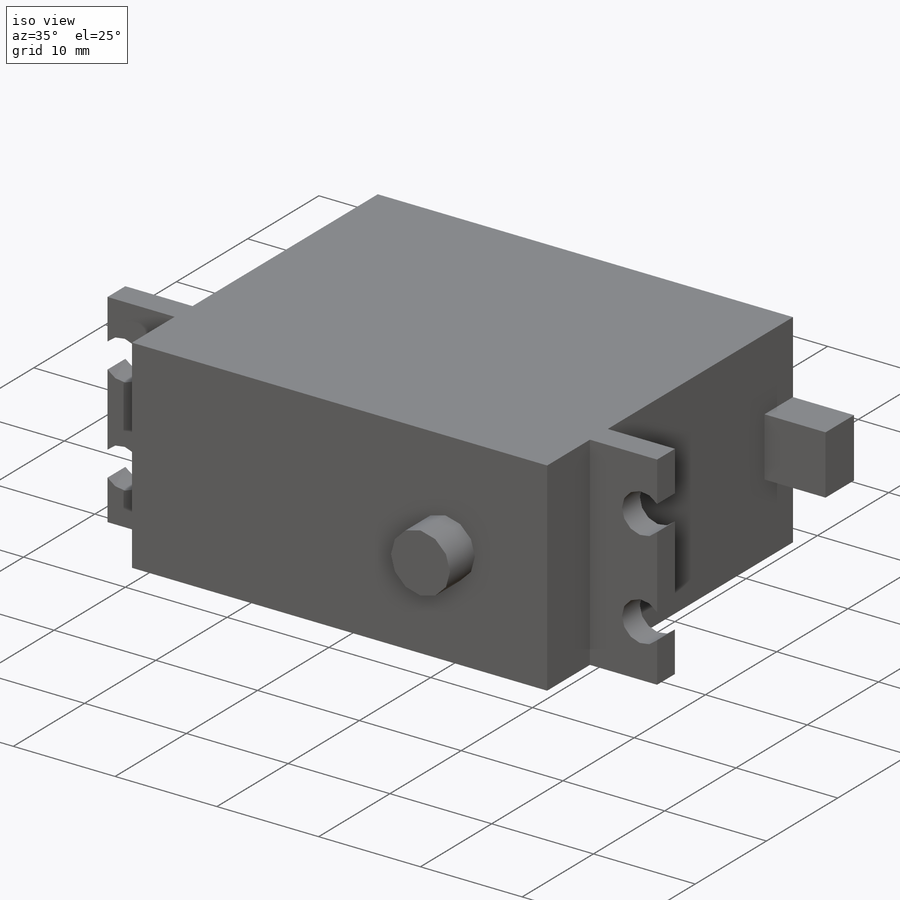
[diagram: iso view]
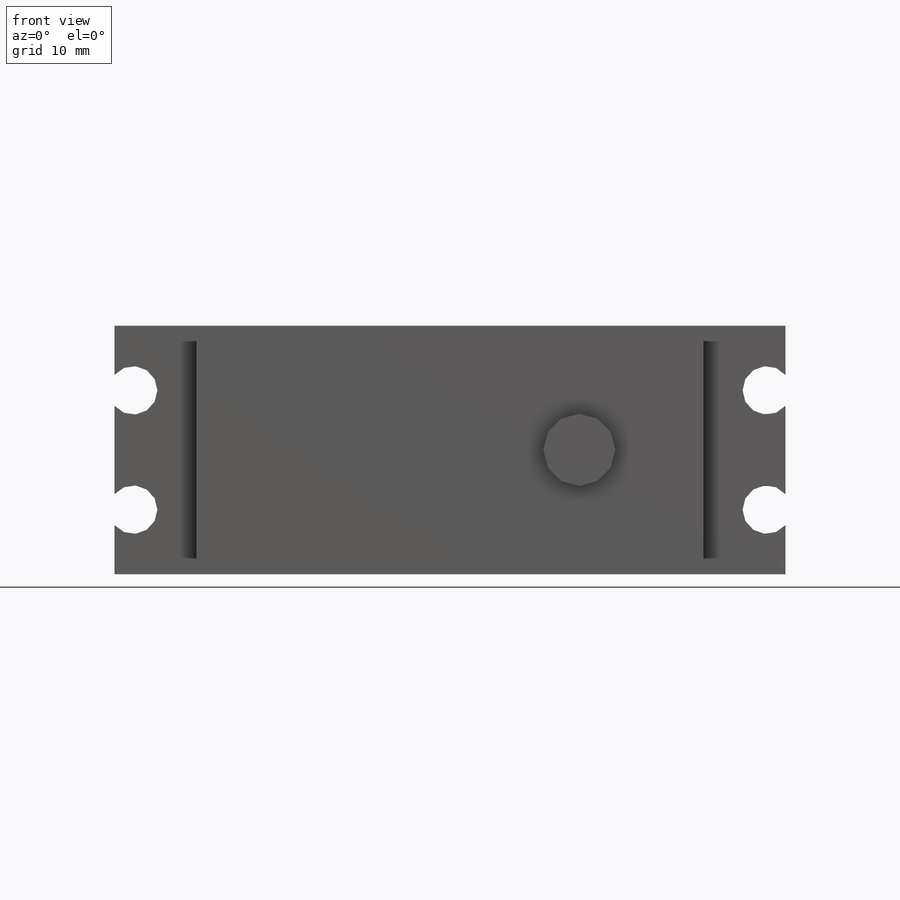
[diagram: front view]
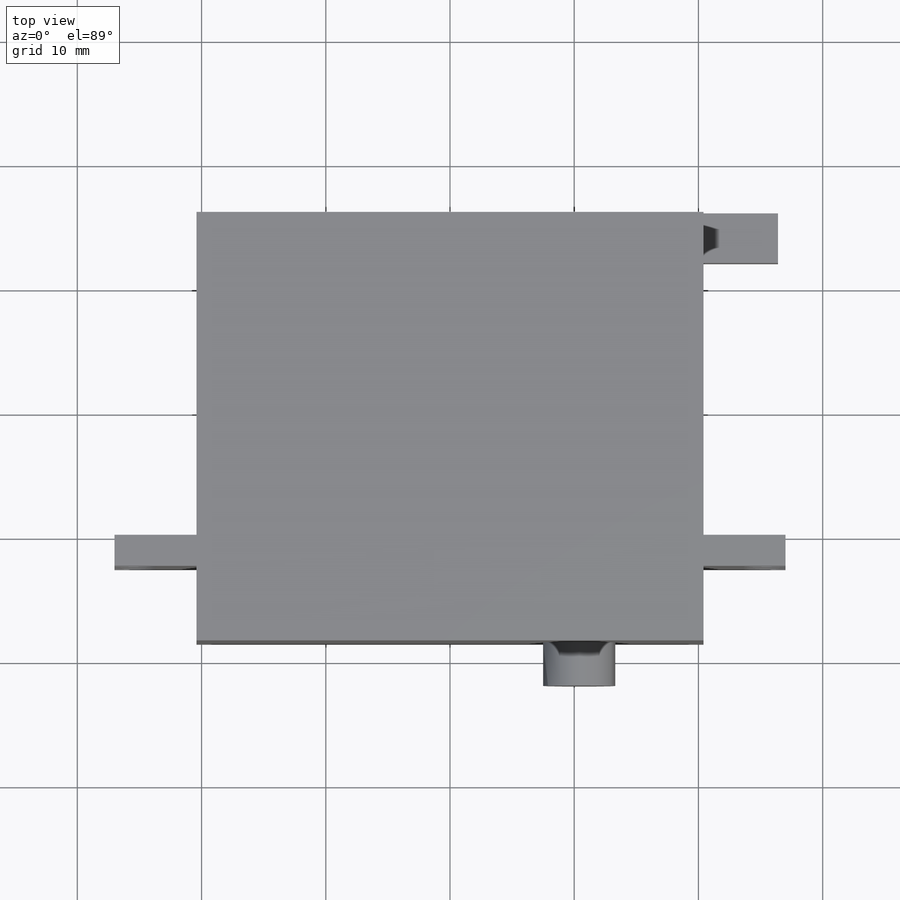
[diagram: top view]
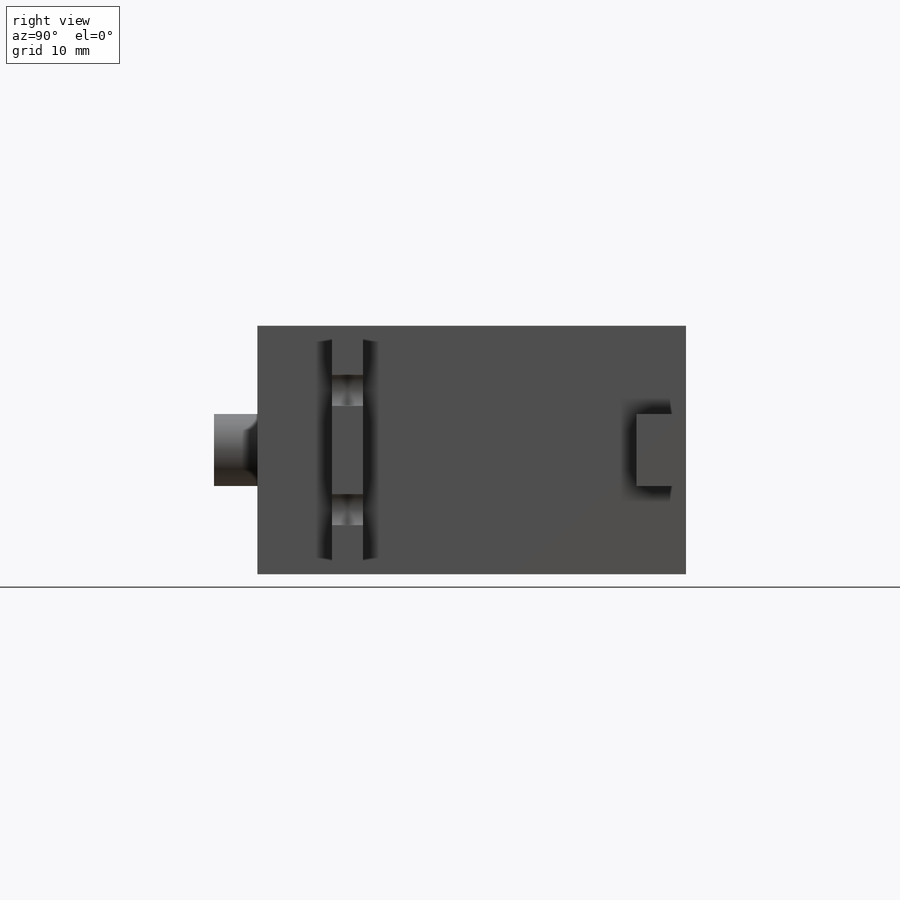
[diagram: right view]
SOLIDWORKS PART (.sldprt)
format: sldprt  version: not decoded by parser v0  size: 247,808 bytes
history: native  units: mm
features: sketch x6, extrude x5, material x1, cut_extrude x1 (+11 scaffold rows collapsed)
feature tree (24):
  scaffold x11  (default folders/planes/origin — collapsed)
  material  "Material <not specified>"
  sketch  "Sketch1"  dims[D1=54.0mm D2=20.0mm]
  extrude  "Boss-Extrude1"  Depth=2.5mm
  sketch  "Sketch3"  dims[D1=3.9mm D2=4.8mm D3=1.5mm]
  cut_extrude  "Cut-Extrude1"  [1 undecoded]
  sketch  "Sketch4"  dims[D1=6.6mm]
  extrude  "Boss-Extrude2"  Depth=6mm
  sketch  "Sketch5"  dims[D1=6.6mm]
  extrude  "Boss-Extrude3"  Depth=26mm
  sketch  "Sketch6"  dims[D2=5.8mm D1=10.0mm]
  extrude  "Boss-Extrude4"  Depth=3.5mm
  sketch  "Sketch7"  dims[D1=5.8mm D2=4.0mm]
  extrude  "Boss-Extrude5"  Depth=6mm
decode coverage: 11 of 12 modeling features carry decoded parameters
note: 1 parameter value undecoded
note: suppression state not decoded; provenance and decode notes live in map.json
